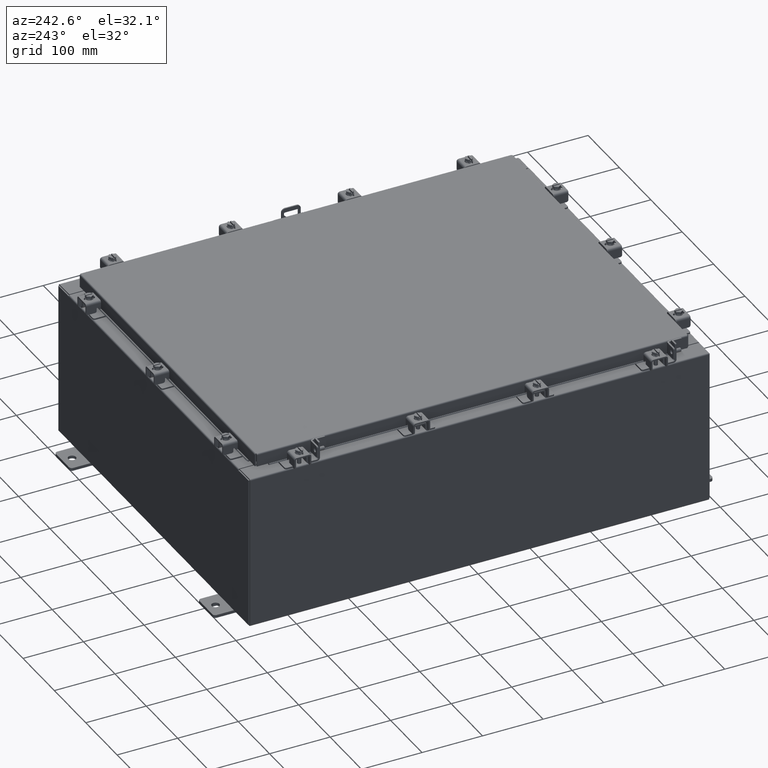
[diagram: clean part render]
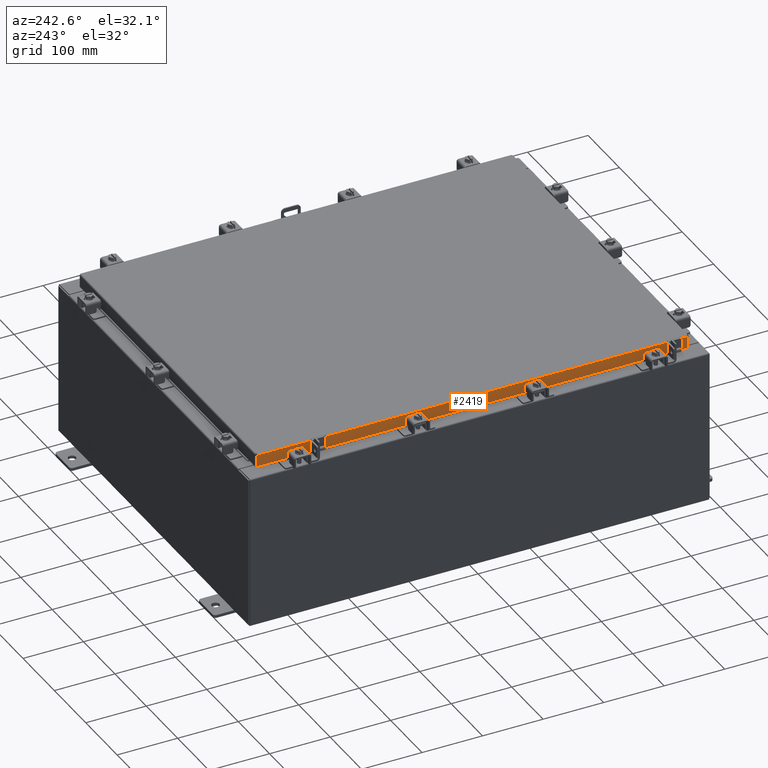
[diagram: same view with one face highlighted and labeled with its STEP entity id]
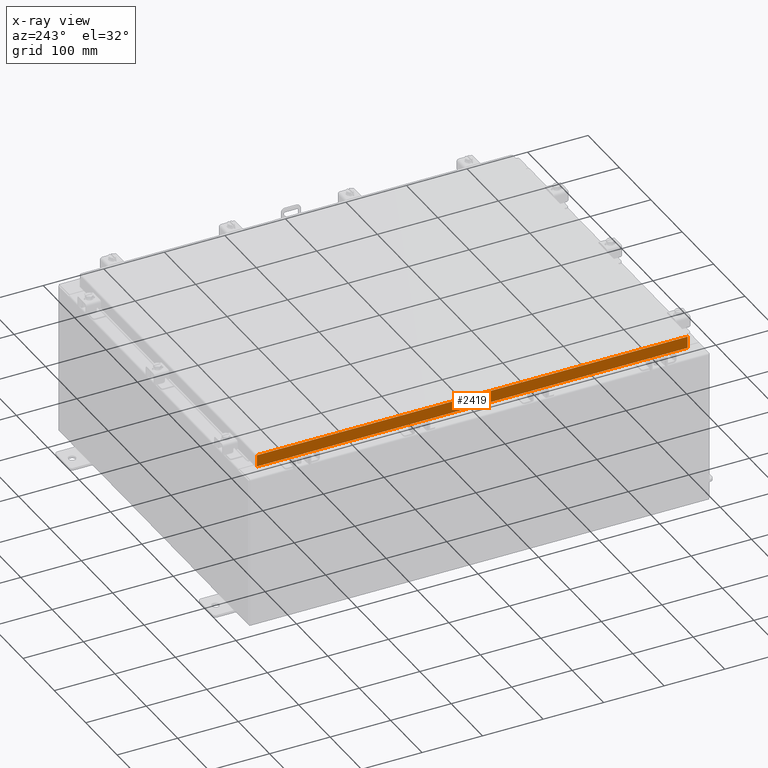
[diagram: x-ray of the same camera — body ghosted, the highlighted face saturated]
A machine part, auxiliary view. The second image highlights one B-rep face of the part: STEP entity #2419.
The next image is the same camera in x-ray: the body ghosted, the highlighted face saturated — about 0% of this face is hidden behind the body in this view.
In plain terms, the highlighted planar face has unit normal (1, 0, -0).
Its self-contained STEP definition (entity closure, byte-faithful):
#30 = DIRECTION ( 'NONE',  ( -0.0000000000000000000, 1.000000000000000000, 1.211441035930299800E-016 ) ) ;
#558 = ORIENTED_EDGE ( 'NONE', *, *, #2754, .T. ) ;
#877 = CARTESIAN_POINT ( 'NONE',  ( -11.07800000000000300, -14.09399999999999600, -0.8499999999999996400 ) ) ;
#1298 = VECTOR ( 'NONE', #13236, 39.37007874015748100 ) ;
#1688 = CARTESIAN_POINT ( 'NONE',  ( -11.07799999999999900, -14.09399999999999600, -0.08770000000000007000 ) ) ;
#1711 = EDGE_CURVE ( 'NONE', #6775, #10946, #4417, .T. ) ;
#2053 = EDGE_CURVE ( 'NONE', #6843, #11528, #2975, .T. ) ;
#2419 = ADVANCED_FACE ( 'NONE', ( #20048 ), #6178, .F. ) ;
#2664 = VECTOR ( 'NONE', #30, 39.37007874015748100 ) ;
#2754 = EDGE_CURVE ( 'NONE', #6775, #4271, #18051, .T. ) ;
#2975 = LINE ( 'NONE', #877, #16102 ) ;
#3062 = EDGE_CURVE ( 'NONE', #10946, #6843, #17764, .T. ) ;
#3436 = ORIENTED_EDGE ( 'NONE', *, *, #11596, .F. ) ;
#3491 = VECTOR ( 'NONE', #13185, 39.37007874015748100 ) ;
#4271 = VERTEX_POINT ( 'NONE', #14053 ) ;
#4277 = CARTESIAN_POINT ( 'NONE',  ( -11.07799999999999900, -14.00515786437626500, -0.07469999999999978000 ) ) ;
#4417 = LINE ( 'NONE', #1688, #22842 ) ;
#5235 = CARTESIAN_POINT ( 'NONE',  ( -11.07799999999999900, 14.00515786437626900, 1.292858714020875700E-013 ) ) ;
#5298 = DIRECTION ( 'NONE',  ( 3.414908049476327800E-031, -1.000000000000000000, -9.308245715024052500E-046 ) ) ;
#6178 = PLANE ( 'NONE',  #6610 ) ;
#6396 = CARTESIAN_POINT ( 'NONE',  ( -11.07799999999999600, -13.25515786437626200, -0.8500000000000012000 ) ) ;
#6534 = EDGE_LOOP ( 'NONE', ( #21623, #558, #19083, #3436, #7078, #14147 ) ) ;
#6610 = AXIS2_PLACEMENT_3D ( 'NONE', #18684, #20489, #9764 ) ;
#6620 = LINE ( 'NONE', #6396, #1298 ) ;
#6775 = VERTEX_POINT ( 'NONE', #20334 ) ;
#6843 = VERTEX_POINT ( 'NONE', #18987 ) ;
#7078 = ORIENTED_EDGE ( 'NONE', *, *, #2053, .F. ) ;
#9764 = DIRECTION ( 'NONE',  ( -2.818880942772360100E-015, 0.0000000000000000000, -1.000000000000000000 ) ) ;
#10773 = CARTESIAN_POINT ( 'NONE',  ( -11.07800000000000300, -14.09399999999999600, -0.8499999999999996400 ) ) ;
#10875 = VERTEX_POINT ( 'NONE', #11266 ) ;
#10946 = VERTEX_POINT ( 'NONE', #11983 ) ;
#11266 = CARTESIAN_POINT ( 'NONE',  ( -11.07799999999999600, 13.25515786437627400, -0.8500000000000012000 ) ) ;
#11528 = VERTEX_POINT ( 'NONE', #20466 ) ;
#11596 = EDGE_CURVE ( 'NONE', #11528, #10875, #6620, .T. ) ;
#11983 = CARTESIAN_POINT ( 'NONE',  ( -11.07799999999999900, -14.00515786437626400, -0.08770000000000007000 ) ) ;
#12340 = EDGE_CURVE ( 'NONE', #10875, #4271, #15778, .T. ) ;
#13185 = DIRECTION ( 'NONE',  ( -2.818880942772360100E-015, 6.982962677686265900E-015, -1.000000000000000000 ) ) ;
#13236 = DIRECTION ( 'NONE',  ( -0.0000000000000000000, 1.000000000000000000, -0.0000000000000000000 ) ) ;
#13308 = VECTOR ( 'NONE', #21318, 39.37007874015748100 ) ;
#14053 = CARTESIAN_POINT ( 'NONE',  ( -11.07800000000000300, 14.00515786437627400, -0.8499999999999963100 ) ) ;
#14147 = ORIENTED_EDGE ( 'NONE', *, *, #3062, .F. ) ;
#15778 = LINE ( 'NONE', #10773, #2664 ) ;
#16102 = VECTOR ( 'NONE', #16923, 39.37007874015748100 ) ;
#16923 = DIRECTION ( 'NONE',  ( -0.0000000000000000000, 1.000000000000000000, 1.211441035930299800E-016 ) ) ;
#17764 = LINE ( 'NONE', #4277, #3491 ) ;
#18051 = LINE ( 'NONE', #5235, #13308 ) ;
#18684 = CARTESIAN_POINT ( 'NONE',  ( -11.07799999999999900, -3.783035137209876100E-030, 3.148837674004379000E-014 ) ) ;
#18987 = CARTESIAN_POINT ( 'NONE',  ( -11.07800000000000300, -14.00515786437626200, -0.8499999999999996400 ) ) ;
#19083 = ORIENTED_EDGE ( 'NONE', *, *, #12340, .F. ) ;
#20048 = FACE_OUTER_BOUND ( 'NONE', #6534, .T. ) ;
#20334 = CARTESIAN_POINT ( 'NONE',  ( -11.07799999999999900, 14.00515786437626900, -0.08770000000000007000 ) ) ;
#20466 = CARTESIAN_POINT ( 'NONE',  ( -11.07799999999999600, -13.25515786437625600, -0.8500000000000012000 ) ) ;
#20489 = DIRECTION ( 'NONE',  ( 1.000000000000000000, 3.414908049476327800E-031, -2.818880942772360100E-015 ) ) ;
#21318 = DIRECTION ( 'NONE',  ( -2.818880942772360100E-015, 6.982962677686265900E-015, -1.000000000000000000 ) ) ;
#21623 = ORIENTED_EDGE ( 'NONE', *, *, #1711, .F. ) ;
#22842 = VECTOR ( 'NONE', #5298, 39.37007874015748100 ) ;